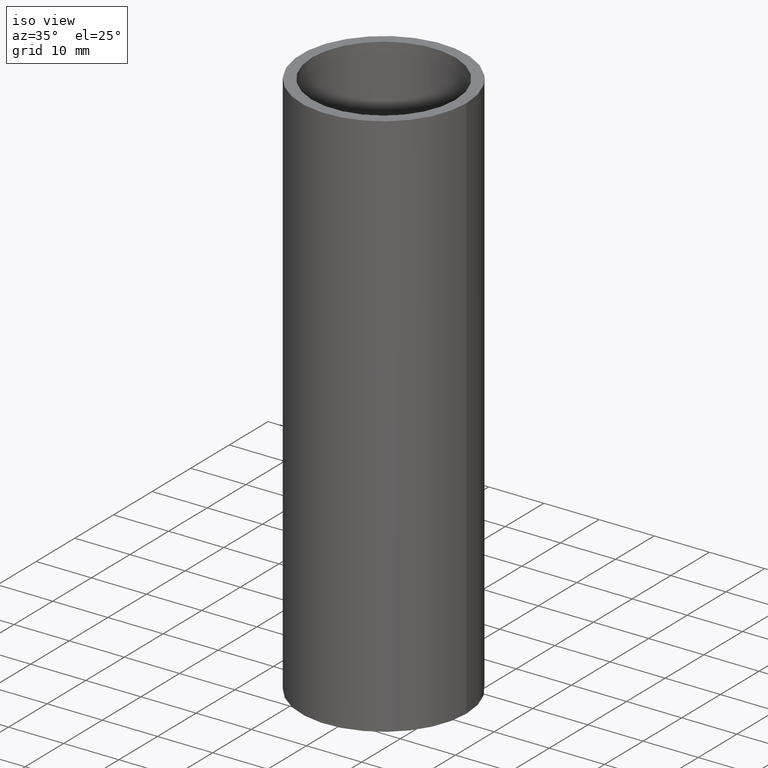
[diagram: clean part render]
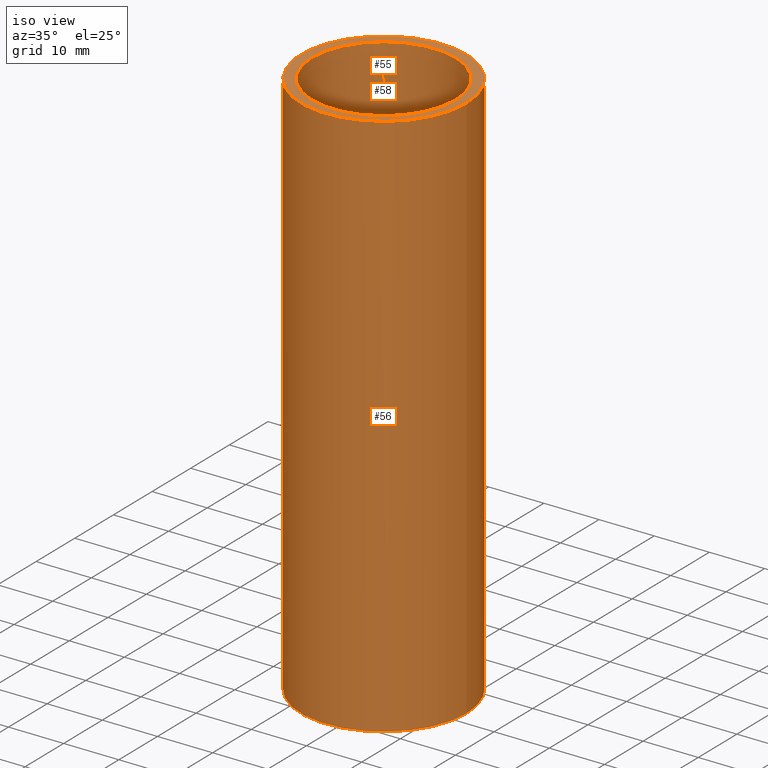
[diagram: same view with one multi-face feature highlighted, each face labeled with its STEP entity id]
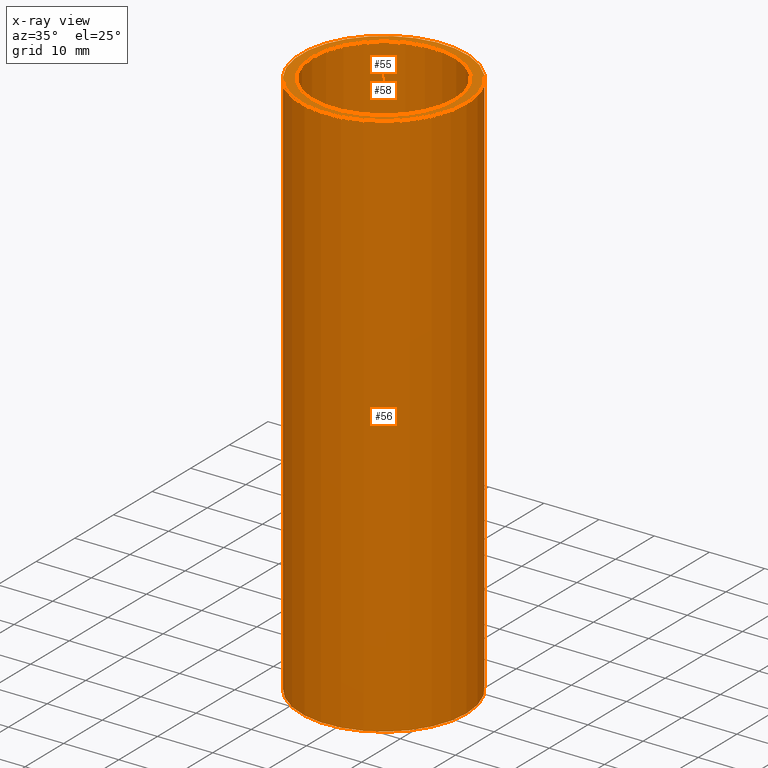
[diagram: x-ray of the same camera — body ghosted, the whole feature saturated]
A machine part, iso view. The highlighted faces form ONE feature: a stepped (counterbored) hole: 2 coaxial cylindrical walls of radii 13 -> 15 mm joined by 1 annular planar shoulder face(s). The faces share edges in the B-rep.
The next image is the same camera in x-ray: the body ghosted and the whole hole feature saturated, so the bore chain is visible through the body.
Their STEP definitions:
[1] entity #56 (Cylinder):
#18=FACE_BOUND('',#28,.T.);
#22=FACE_OUTER_BOUND('',#27,.T.);
#27=EDGE_LOOP('',(#47));
#28=EDGE_LOOP('',(#48));
#35=CIRCLE('',#65,15.);
#36=CIRCLE('',#66,15.);
#39=VERTEX_POINT('',#94);
#40=VERTEX_POINT('',#96);
#43=EDGE_CURVE('',#39,#39,#35,.T.);
#44=EDGE_CURVE('',#40,#40,#36,.T.);
#47=ORIENTED_EDGE('',*,*,#43,.F.);
#48=ORIENTED_EDGE('',*,*,#44,.F.);
#54=CYLINDRICAL_SURFACE('',#64,15.);
#56=ADVANCED_FACE('',(#22,#18),#54,.T.);
#64=AXIS2_PLACEMENT_3D('',#93,#77,#78);
#65=AXIS2_PLACEMENT_3D('',#95,#79,#80);
#66=AXIS2_PLACEMENT_3D('',#97,#81,#82);
#77=DIRECTION('center_axis',(0.,0.,1.));
#78=DIRECTION('ref_axis',(-1.,0.,0.));
#79=DIRECTION('center_axis',(0.,0.,1.));
#80=DIRECTION('ref_axis',(-1.,0.,0.));
#81=DIRECTION('center_axis',(0.,0.,-1.));
#82=DIRECTION('ref_axis',(-1.,0.,0.));
#93=CARTESIAN_POINT('Origin',(0.,0.,0.));
#94=CARTESIAN_POINT('',(15.,1.83697019872103E-15,100.));
#95=CARTESIAN_POINT('Origin',(0.,0.,100.));
#96=CARTESIAN_POINT('',(15.,1.83697019872103E-15,0.));
#97=CARTESIAN_POINT('Origin',(0.,0.,0.));
[2] entity #55 (Cylinder):
#17=FACE_BOUND('',#26,.T.);
#21=FACE_OUTER_BOUND('',#25,.T.);
#25=EDGE_LOOP('',(#45));
#26=EDGE_LOOP('',(#46));
#33=CIRCLE('',#62,13.);
#34=CIRCLE('',#63,13.);
#37=VERTEX_POINT('',#89);
#38=VERTEX_POINT('',#91);
#41=EDGE_CURVE('',#37,#37,#33,.T.);
#42=EDGE_CURVE('',#38,#38,#34,.T.);
#45=ORIENTED_EDGE('',*,*,#41,.F.);
#46=ORIENTED_EDGE('',*,*,#42,.F.);
#53=CYLINDRICAL_SURFACE('',#61,13.);
#55=ADVANCED_FACE('',(#21,#17),#53,.F.);
#61=AXIS2_PLACEMENT_3D('',#88,#71,#72);
#62=AXIS2_PLACEMENT_3D('',#90,#73,#74);
#63=AXIS2_PLACEMENT_3D('',#92,#75,#76);
#71=DIRECTION('center_axis',(0.,0.,1.));
#72=DIRECTION('ref_axis',(-1.,0.,0.));
#73=DIRECTION('center_axis',(0.,0.,-1.));
#74=DIRECTION('ref_axis',(-1.,0.,0.));
#75=DIRECTION('center_axis',(0.,0.,1.));
#76=DIRECTION('ref_axis',(-1.,0.,0.));
#88=CARTESIAN_POINT('Origin',(0.,0.,0.));
#89=CARTESIAN_POINT('',(13.,1.59204083889156E-15,100.));
#90=CARTESIAN_POINT('Origin',(0.,0.,100.));
#91=CARTESIAN_POINT('',(13.,1.59204083889156E-15,0.));
#92=CARTESIAN_POINT('Origin',(0.,0.,0.));
[3] entity #58 (Plane):
#16=PLANE('',#68);
#20=FACE_BOUND('',#32,.T.);
#24=FACE_OUTER_BOUND('',#31,.T.);
#31=EDGE_LOOP('',(#51));
#32=EDGE_LOOP('',(#52));
#33=CIRCLE('',#62,13.);
#35=CIRCLE('',#65,15.);
#37=VERTEX_POINT('',#89);
#39=VERTEX_POINT('',#94);
#41=EDGE_CURVE('',#37,#37,#33,.T.);
#43=EDGE_CURVE('',#39,#39,#35,.T.);
#51=ORIENTED_EDGE('',*,*,#43,.T.);
#52=ORIENTED_EDGE('',*,*,#41,.T.);
#58=ADVANCED_FACE('',(#24,#20),#16,.T.);
#62=AXIS2_PLACEMENT_3D('',#90,#73,#74);
#65=AXIS2_PLACEMENT_3D('',#95,#79,#80);
#68=AXIS2_PLACEMENT_3D('',#99,#85,#86);
#73=DIRECTION('center_axis',(0.,0.,-1.));
#74=DIRECTION('ref_axis',(-1.,0.,0.));
#79=DIRECTION('center_axis',(0.,0.,1.));
#80=DIRECTION('ref_axis',(-1.,0.,0.));
#85=DIRECTION('center_axis',(0.,0.,1.));
#86=DIRECTION('ref_axis',(1.,0.,0.));
#89=CARTESIAN_POINT('',(13.,1.59204083889156E-15,100.));
#90=CARTESIAN_POINT('Origin',(0.,0.,100.));
#94=CARTESIAN_POINT('',(15.,1.83697019872103E-15,100.));
#95=CARTESIAN_POINT('Origin',(0.,0.,100.));
#99=CARTESIAN_POINT('Origin',(-6.46513305282378E-16,2.46716227694479E-16,
100.));